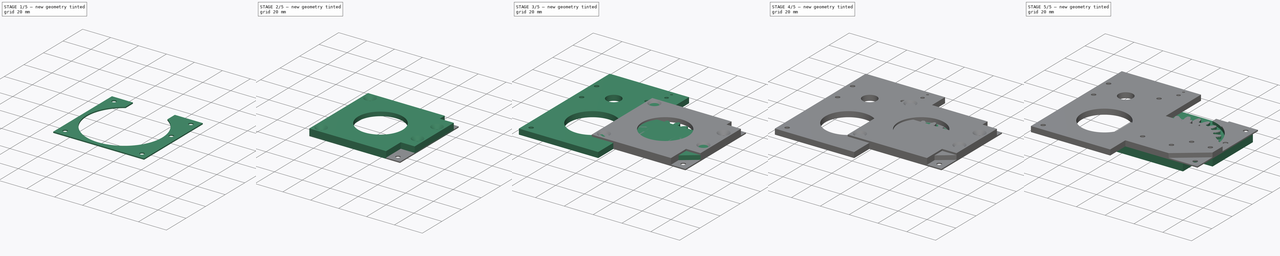
[diagram: build sequence overview — one tinted view per stage of 5, left to right]
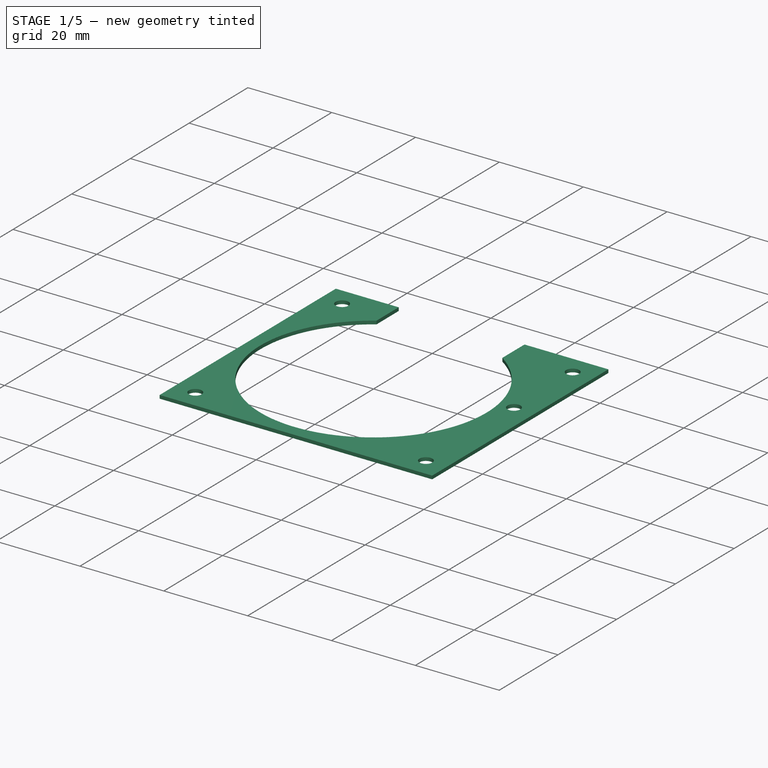
[diagram: stage 1 of 5 — iso view after this stage's code; geometry added in this stage tinted green]
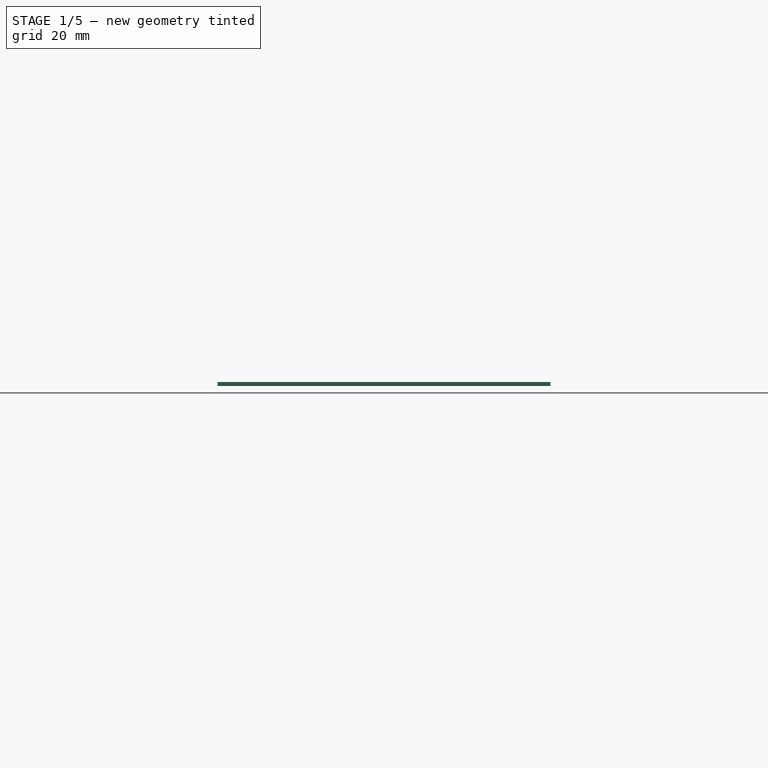
[diagram: stage 1 of 5 — front view after this stage's code; geometry added in this stage tinted green]
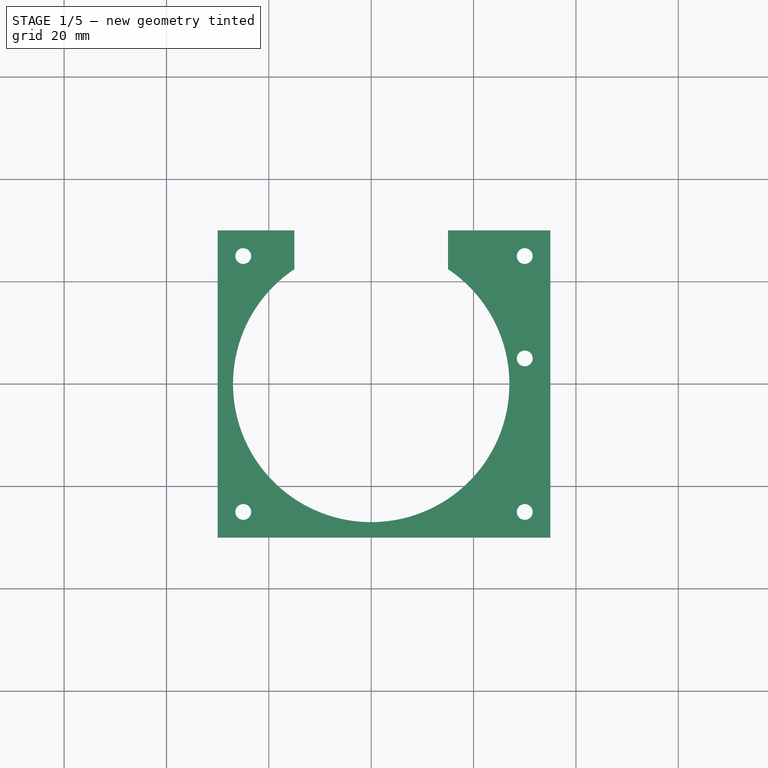
[diagram: stage 1 of 5 — top view after this stage's code; geometry added in this stage tinted green]
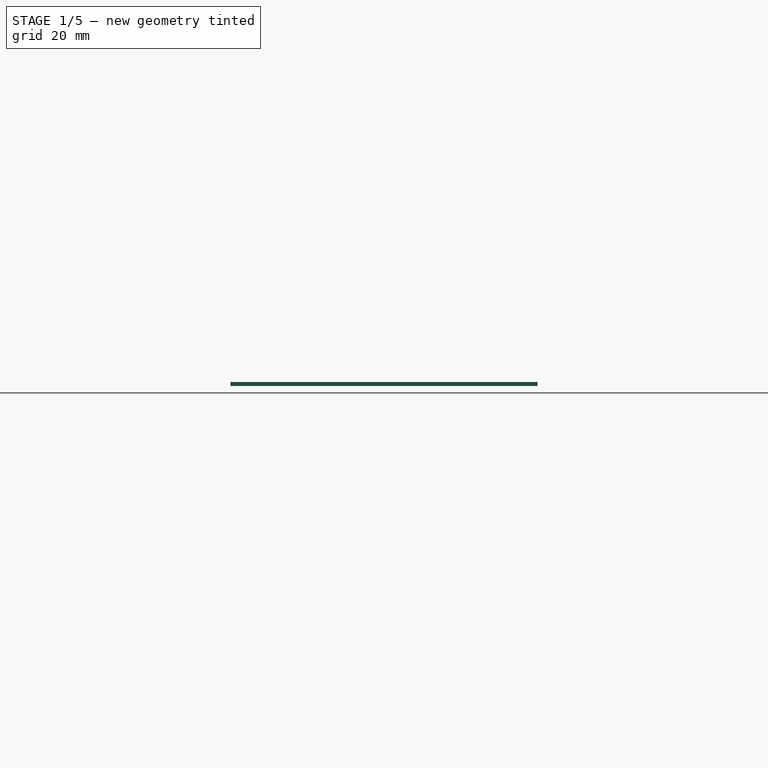
[diagram: stage 1 of 5 — right view after this stage's code; geometry added in this stage tinted green]
FCSTD DOCUMENT  (FreeCAD 0.17R13541 (Git))
Label: rotation
License: All rights reserved
LicenseURL: http://en.wikipedia.org/wiki/All_rights_reserved
objects: Sketcher::SketchObject×13, PartDesign::Pad×7, PartDesign::Body×7, PartDesign::Pocket×5, Part::Part2DObjectPython×2, PartDesign::Revolution×2, Part::Mirroring×2, Part::Feature×1, PartDesign::Hole×1
note: 55 computed .brp shape members not serialized (recipe doc carries the construction recipe); baked Part::Feature solids carry a one-line shape summary decoded from their .brp

FEATURE [Sketcher::SketchObject] Sketch010
  MapMode = 5
  Support = -> [XY_Plane004]
  sketch-geometry (14):
    g0: ArcOfCircle CenterX=0 CenterY=0 CenterZ=0 NormalX=0 NormalY=0 NormalZ=1 AngleXU=0 Radius=27 StartAngle=0 EndAngle=0.981765
    g1: ArcOfCircle CenterX=0 CenterY=0 CenterZ=0 NormalX=0 NormalY=0 NormalZ=1 AngleXU=0 Radius=27 StartAngle=2.15983 EndAngle=6.28319
    g2: LineSegment StartX=15 StartY=30 StartZ=0 EndX=15 EndY=22.4499 EndZ=0
    g3: LineSegment StartX=35 StartY=30 StartZ=0 EndX=35 EndY=-30 EndZ=0
    g4: LineSegment StartX=35 StartY=-30 StartZ=0 EndX=-30 EndY=-30 EndZ=0
    g5: LineSegment StartX=-30 StartY=-30 StartZ=0 EndX=-30 EndY=30 EndZ=0
    g6: LineSegment StartX=-30 StartY=30 StartZ=0 EndX=-15 EndY=30 EndZ=0
    g7: LineSegment StartX=-15 StartY=30 StartZ=0 EndX=-15 EndY=22.4499 EndZ=0
    g8: LineSegment StartX=15 StartY=30 StartZ=0 EndX=35 EndY=30 EndZ=0
    g9: Circle CenterX=30 CenterY=25 CenterZ=0 NormalX=0 NormalY=0 NormalZ=-1 AngleXU=3.14159 Radius=1.55
    g10: Circle CenterX=30 CenterY=5 CenterZ=0 NormalX=0 NormalY=0 NormalZ=-1 AngleXU=3.14159 Radius=1.55
    g11: Circle CenterX=30 CenterY=-25 CenterZ=0 NormalX=0 NormalY=0 NormalZ=-1 AngleXU=3.14159 Radius=1.55
    g12: Circle CenterX=-25 CenterY=-25 CenterZ=0 NormalX=0 NormalY=0 NormalZ=-1 AngleXU=3.14159 Radius=1.55
    g13: Circle CenterX=-25 CenterY=25 CenterZ=0 NormalX=0 NormalY=0 NormalZ=-1 AngleXU=3.14159 Radius=1.55
FEATURE [PartDesign::Pad] Pad004
  Length = 0.2
  Length2 = 100
  Profile = -> Sketch010
  Type = 0
FEATURE [PartDesign::Body] Body004  label="Body02"
  Group = -> [Sketch010,Pad004]
  Origin = -> Origin004
  Tip = -> Pad004
FEATURE [Sketcher::SketchObject] Sketch011
  MapMode = 5
  Support = -> [XY_Plane005]
  sketch-geometry (14):
    g0: ArcOfCircle CenterX=0 CenterY=0 CenterZ=0 NormalX=0 NormalY=0 NormalZ=1 AngleXU=0 Radius=27 StartAngle=0 EndAngle=0.981765
    g1: ArcOfCircle CenterX=0 CenterY=0 CenterZ=0 NormalX=0 NormalY=0 NormalZ=1 AngleXU=0 Radius=27 StartAngle=2.15983 EndAngle=6.28319
    g2: LineSegment StartX=15 StartY=30 StartZ=0 EndX=15 EndY=22.4499 EndZ=0
    g3: LineSegment StartX=35 StartY=30 StartZ=0 EndX=35 EndY=-30 EndZ=0
    g4: LineSegment StartX=35 StartY=-30 StartZ=0 EndX=-30 EndY=-30 EndZ=0
    g5: LineSegment StartX=-30 StartY=-30 StartZ=0 EndX=-30 EndY=30 EndZ=0
    g6: LineSegment StartX=-30 StartY=30 StartZ=0 EndX=-15 EndY=30 EndZ=0
    g7: LineSegment StartX=-15 StartY=30 StartZ=0 EndX=-15 EndY=22.4499 EndZ=0
    g8: LineSegment StartX=15 StartY=30 StartZ=0 EndX=35 EndY=30 EndZ=0
    g9: Circle CenterX=30 CenterY=25 CenterZ=0 NormalX=0 NormalY=0 NormalZ=-1 AngleXU=-3.14159 Radius=1.55
    g10: Circle CenterX=30 CenterY=5 CenterZ=0 NormalX=0 NormalY=0 NormalZ=-1 AngleXU=-3.14159 Radius=1.55
    g11: Circle CenterX=30 CenterY=-25 CenterZ=0 NormalX=0 NormalY=0 NormalZ=-1 AngleXU=-3.14159 Radius=1.55
    g12: Circle CenterX=-25 CenterY=-25 CenterZ=0 NormalX=0 NormalY=0 NormalZ=-1 AngleXU=-3.14159 Radius=1.55
    g13: Circle CenterX=-25 CenterY=25 CenterZ=0 NormalX=0 NormalY=0 NormalZ=-1 AngleXU=-3.14159 Radius=1.55
FEATURE [PartDesign::Pad] Pad005
  Length = 0.4
  Length2 = 100
  Profile = -> Sketch011
  Type = 0
FEATURE [PartDesign::Body] Body005  label="Body04"
  Group = -> [Sketch011,Pad005]
  Origin = -> Origin005
  Tip = -> Pad005
FEATURE [Sketcher::SketchObject] Sketch012
  MapMode = 5
  Support = -> [XY_Plane006]
  sketch-geometry (14):
    g0: ArcOfCircle CenterX=0 CenterY=0 CenterZ=0 NormalX=0 NormalY=0 NormalZ=1 AngleXU=0 Radius=27 StartAngle=0 EndAngle=0.981765
    g1: ArcOfCircle CenterX=0 CenterY=0 CenterZ=0 NormalX=0 NormalY=0 NormalZ=1 AngleXU=0 Radius=27 StartAngle=2.15983 EndAngle=6.28319
    g2: LineSegment StartX=15 StartY=30 StartZ=0 EndX=15 EndY=22.4499 EndZ=0
    g3: LineSegment StartX=35 StartY=30 StartZ=0 EndX=35 EndY=-30 EndZ=0
    g4: LineSegment StartX=35 StartY=-30 StartZ=0 EndX=-30 EndY=-30 EndZ=0
    g5: LineSegment StartX=-30 StartY=-30 StartZ=0 EndX=-30 EndY=30 EndZ=0
    g6: LineSegment StartX=-30 StartY=30 StartZ=0 EndX=-15 EndY=30 EndZ=0
    g7: LineSegment StartX=-15 StartY=30 StartZ=0 EndX=-15 EndY=22.4499 EndZ=0
    g8: LineSegment StartX=15 StartY=30 StartZ=0 EndX=35 EndY=30 EndZ=0
    g9: Circle CenterX=30 CenterY=25 CenterZ=0 NormalX=0 NormalY=0 NormalZ=-1 AngleXU=3.14159 Radius=1.55
    g10: Circle CenterX=30 CenterY=5 CenterZ=0 NormalX=0 NormalY=0 NormalZ=-1 AngleXU=3.14159 Radius=1.55
    g11: Circle CenterX=30 CenterY=-25 CenterZ=0 NormalX=0 NormalY=0 NormalZ=-1 AngleXU=3.14159 Radius=1.55
    g12: Circle CenterX=-25 CenterY=-25 CenterZ=0 NormalX=0 NormalY=0 NormalZ=-1 AngleXU=3.14159 Radius=1.55
    g13: Circle CenterX=-25 CenterY=25 CenterZ=0 NormalX=0 NormalY=0 NormalZ=-1 AngleXU=3.14159 Radius=1.55
FEATURE [PartDesign::Pad] Pad006
  Length = 0.8
  Length2 = 100
  Profile = -> Sketch012
  Type = 0
FEATURE [PartDesign::Body] Body006  label="Body08"
  Group = -> [Sketch012,Pad006]
  Origin = -> Origin006
  Tip = -> Pad006
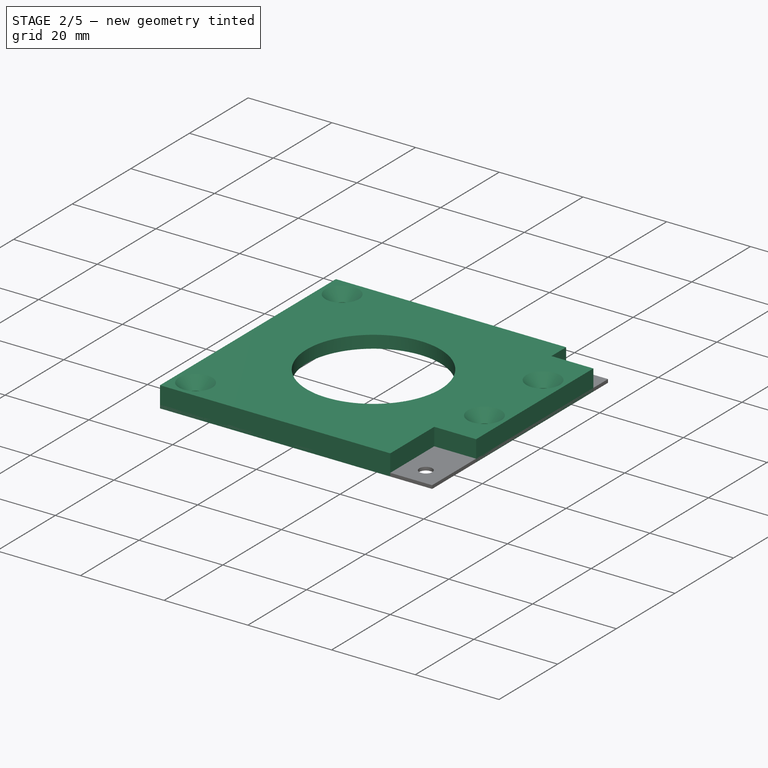
[diagram: stage 2 of 5 — iso view after this stage's code; geometry added in this stage tinted green]
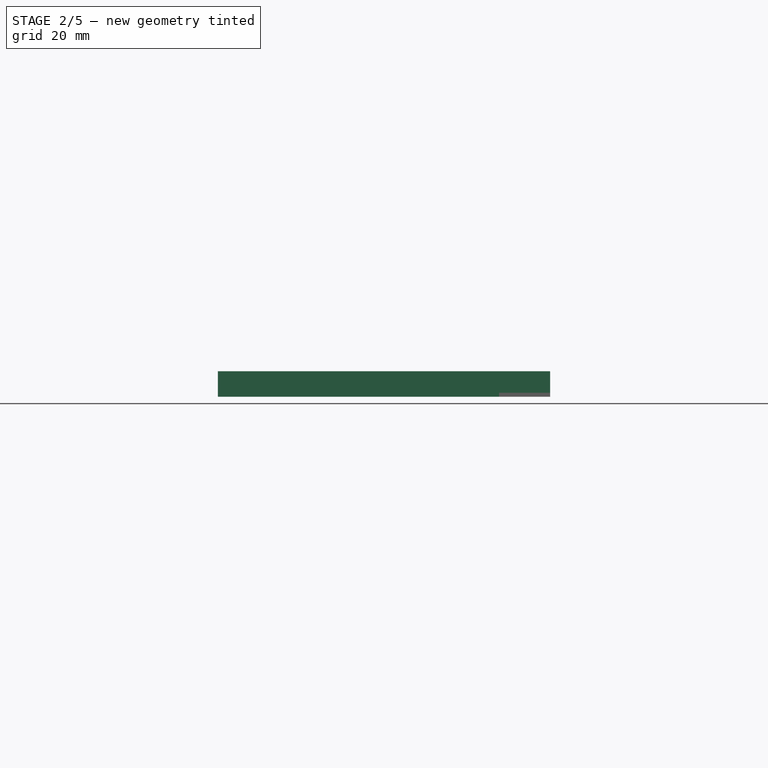
[diagram: stage 2 of 5 — front view after this stage's code; geometry added in this stage tinted green]
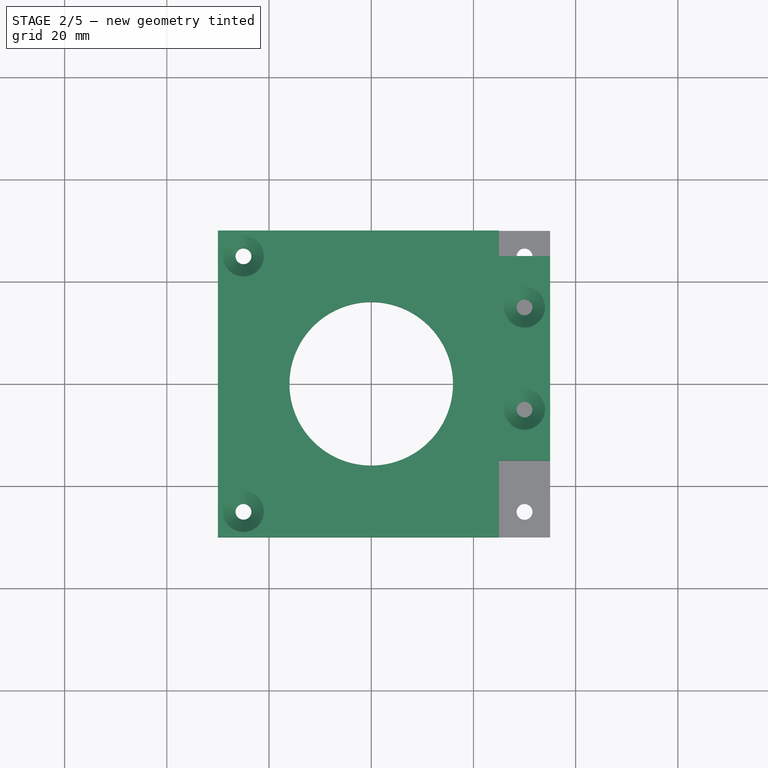
[diagram: stage 2 of 5 — top view after this stage's code; geometry added in this stage tinted green]
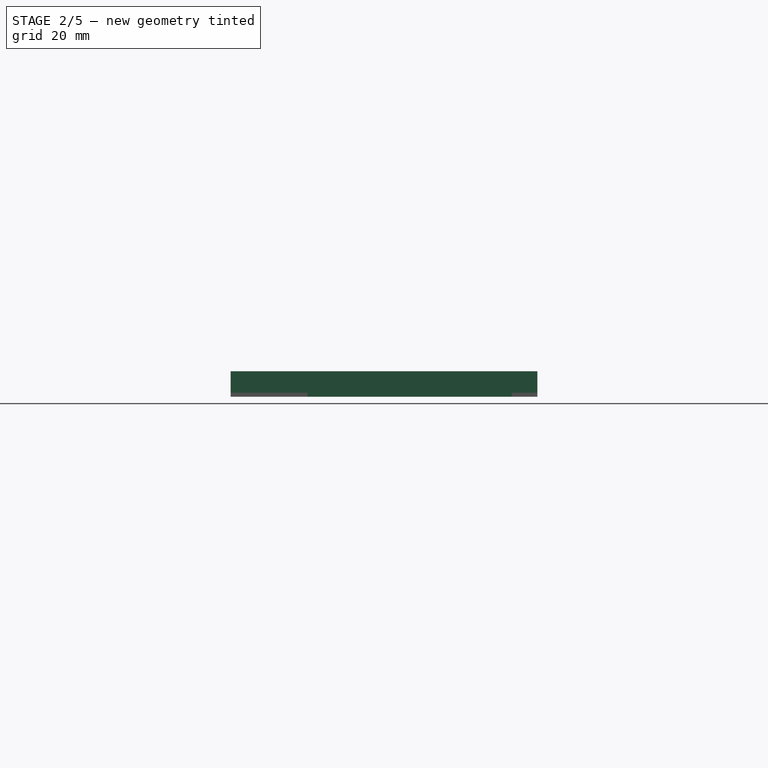
[diagram: stage 2 of 5 — right view after this stage's code; geometry added in this stage tinted green]
FEATURE [PartDesign::Body] Body  label="bearing-middle"
  Group = -> [Sketch,Sketch001,InvoluteGear,Pad,Pocket001,Sketch002,Revolution,Pocket]
  Origin = -> Origin
  Tip = -> Pocket
FEATURE [Sketcher::SketchObject] Sketch003
  MapMode = 5
  Placement = pos=(0,0,0) rot=(1,0,0;1.5708rad)
  Support = -> [XZ_Plane001]
  sketch-geometry (10):
    g0: LineSegment StartX=27 StartY=2 StartZ=0 EndX=27 EndY=0 EndZ=0
    g1: LineSegment StartX=27 StartY=0 StartZ=0 EndX=50 EndY=0 EndZ=0
    g2: LineSegment StartX=50 StartY=0 StartZ=0 EndX=50 EndY=5 EndZ=0
    g3: LineSegment StartX=50 StartY=5 StartZ=0 EndX=16 EndY=5 EndZ=0
    g4: LineSegment StartX=16 StartY=5 StartZ=0 EndX=16 EndY=2 EndZ=0
    g5: ArcOfCircle CenterX=18 CenterY=1.8 CenterZ=0 NormalX=0 NormalY=0 NormalZ=1 AngleXU=0 Radius=1.1 StartAngle=0.182835 EndAngle=2.95876
    g6: GeomPoint X=20 Y=2 Z=0
    g7: LineSegment StartX=19.0817 StartY=2 StartZ=0 EndX=20 EndY=2 EndZ=0
    g8: LineSegment StartX=20 StartY=2 StartZ=0 EndX=27 EndY=2 EndZ=0
    g9: LineSegment StartX=16 StartY=2 StartZ=0 EndX=16.9183 EndY=2 EndZ=0
  constraints (29):
    c: Vertical(g0)
    c: Coincident(g0,g1)
    c: PointOnObject(g1,g-1)
    c: Horizontal(g1)
    c: Coincident(g1,g2)
    c: Vertical(g2)
    c: Coincident(g2,g3)
    c: Horizontal(g3)
    c: Coincident(g3,g4)
    c: DistanceY(g-1,g4) = 2
    c: Radius(g5) = 1.1
    c: DistanceY(g5,g5) = 0.2
    c: DistanceY(g0,g0) = 2
    c: Coincident(g7,g5)
    c: Coincident(g7,g6)
    c: Horizontal(g7)
    c: Coincident(g8,g6)
    c: Coincident(g8,g0)
    c: Horizontal(g8)
    c: DistanceY(g2,g2) = 5
    c: DistanceX(g-1,g6) = 20
    c: DistanceX(g-1,g1) = 50
    c: DistanceX(g-1,g0) = 27
    c: DistanceX(g-1,g3) = 16
    c: Vertical(g4)
    c: Coincident(g9,g4)
    c: Coincident(g9,g5)
    c: Horizontal(g9)
    c: Equal(g9,g7)
FEATURE [PartDesign::Revolution] Revolution001
  Angle = 360
  Axis = (0,0,1)
  Base = (0,0,0)
  Placement = pos=(0,0,0) rot=(1,0,0;1.5708rad)
  Profile = -> Sketch003
  ReferenceAxis = -> Sketch003 [V_Axis]
  Reversed = true
FEATURE [PartDesign::Body] Body003  label="plywood001"
  Group = -> [Sketch006,Pad003]
  Origin = -> Origin003
  Placement = pos=(40,15,-8.8) rot=(0,0,1;0rad)
  Tip = -> Pad003
FEATURE [Sketcher::SketchObject] Sketch007
  MapMode = 5
  Placement = pos=(0,0,5) rot=(0,0,1;3.14159rad)
  Support = -> [Revolution001]
  sketch-geometry (13):
    g0: LineSegment StartX=30 StartY=30 StartZ=0 EndX=30 EndY=-30 EndZ=0
    g1: LineSegment StartX=-108.453 StartY=82.4132 StartZ=0 EndX=121.2 EndY=82.4132 EndZ=0
    g2: LineSegment StartX=121.2 StartY=82.4132 StartZ=0 EndX=121.2 EndY=-113.909 EndZ=0
    g3: LineSegment StartX=121.2 StartY=-113.909 StartZ=0 EndX=-108.453 EndY=-113.909 EndZ=0
    g4: LineSegment StartX=-108.453 StartY=-113.909 StartZ=0 EndX=-108.453 EndY=82.4132 EndZ=0
    g5: LineSegment StartX=-25 StartY=30 StartZ=0 EndX=-25 EndY=15 EndZ=0
    g6: LineSegment StartX=-25 StartY=15 StartZ=0 EndX=-35 EndY=15 EndZ=0
    g7: LineSegment StartX=-25 StartY=-30 StartZ=0 EndX=-25 EndY=-25 EndZ=0
    g8: LineSegment StartX=-25 StartY=-25 StartZ=0 EndX=-35 EndY=-25 EndZ=0
    g9: LineSegment StartX=30 StartY=-30 StartZ=0 EndX=-25 EndY=-30 EndZ=0
    g10: LineSegment StartX=-35 StartY=-25 StartZ=0 EndX=-35 EndY=15 EndZ=0
    g11: LineSegment StartX=-25 StartY=30 StartZ=0 EndX=30 EndY=30 EndZ=0
    g12: LineSegment [constr] StartX=-25 StartY=-25 StartZ=0 EndX=-25 EndY=15 EndZ=0
  constraints (34):
    c: Vertical(g0)
    c: DistanceX(g-1,g0) = 30
    c: Coincident(g1,g2)
    c: Coincident(g2,g3)
    c: Coincident(g3,g4)
    c: Coincident(g4,g1)
    c: Horizontal(g1)
    c: Horizontal(g3)
    c: Vertical(g2)
    c: Vertical(g4)
    c: Vertical(g5)
    c: Coincident(g6,g5)
    c: Horizontal(g6)
    c: Vertical(g7)
    c: Coincident(g8,g7)
    c: Horizontal(g8)
    c: Coincident(g9,g0)
    c: Coincident(g9,g7)
    c: Horizontal(g9)
    c: Coincident(g10,g8)
    c: Coincident(g10,g6)
    c: Vertical(g10)
    c: Coincident(g11,g5)
    c: Coincident(g11,g0)
    c: Horizontal(g11)
    c: DistanceY(g0,g0) = 60
    c: DistanceX(g9,g9) = 55
    c: Coincident(g12,g7)
    c: Coincident(g12,g5)
    c: Vertical(g12)
    c: DistanceX(g8,g7) = 10
    c: DistanceY(g10,g10) = 40
    c: DistanceY(g7,g7) = 5
    c: DistanceY(g-1,g5) = 30
FEATURE [PartDesign::Pocket] Pocket003
  BaseFeature = -> Revolution001
  Length = 10
  Length2 = 100
  Placement = pos=(0,0,0) rot=(1,0,0;1.5708rad)
  Profile = -> Sketch007
  Type = 0
FEATURE [Sketcher::SketchObject] Sketch008
  MapMode = 5
  Placement = pos=(0,0,5) rot=(0,0,1;3.14159rad)
  Support = -> [Pocket003]
  sketch-geometry (5):
    g0: Circle CenterX=25 CenterY=25 CenterZ=0 NormalX=0 NormalY=0 NormalZ=1 AngleXU=0 Radius=1.55
    g1: Circle CenterX=25 CenterY=-25 CenterZ=0 NormalX=0 NormalY=0 NormalZ=1 AngleXU=0 Radius=1.55
    g2: Circle CenterX=-30 CenterY=-15 CenterZ=0 NormalX=0 NormalY=0 NormalZ=1 AngleXU=0 Radius=1.55
    g3: Circle CenterX=-30 CenterY=5 CenterZ=0 NormalX=0 NormalY=0 NormalZ=1 AngleXU=0 Radius=1.55
    g4: LineSegment [constr] StartX=-30 StartY=5 StartZ=0 EndX=-30 EndY=-15 EndZ=0
  constraints (14):
    c: Radius(g0) = 1.55
    c: Radius(g3) = 1.55
    c: Radius(g2) = 1.55
    c: Radius(g1) = 1.55
    c: DistanceX(g-1,g0) = 25
    c: DistanceX(g-1,g1) = 25
    c: DistanceY(g-1,g0) = 25
    c: DistanceY(g3,g-1) = -5
    c: DistanceY(g1,g-1) = 25
    c: DistanceY(g2,g3) = 20
    c: Coincident(g4,g3)
    c: Coincident(g4,g2)
    c: Vertical(g4)
    c: DistanceX(g3,g-1) = 30
FEATURE [PartDesign::Hole] Hole
  BaseFeature = -> Pocket003
  Depth = 25
  DepthType = 0
  Diameter = 3.1
  DrillPoint = 0
  DrillPointAngle = 118
  HoleCutCountersinkAngle = 90
  HoleCutDepth = 0
  HoleCutDiameter = 8
  HoleCutType = 2
  ModelActualThread = false
  Placement = pos=(0,0,0) rot=(1,0,0;1.5708rad)
  Profile = -> Sketch008
  Tapered = false
  TaperedAngle = 90
  ThreadAngle = 0
  ThreadClass = 0
  ThreadCutOffInner = 0
  ThreadCutOffOuter = 0
  ThreadDirection = 0
  ThreadFit = 0
  ThreadPitch = 0
  ThreadSize = 0
  ThreadType = 0
  Threaded = false
FEATURE [Sketcher::SketchObject] Sketch009
  MapMode = 5
  Placement = pos=(0,30,0) rot=(-1,0,0;1.5708rad)
  Support = -> [Hole]
  sketch-geometry (4):
    g0: LineSegment StartX=-24 StartY=0 StartZ=0 EndX=6 EndY=0 EndZ=0
    g1: LineSegment StartX=6 StartY=0 StartZ=0 EndX=6 EndY=-2 EndZ=0
    g2: LineSegment StartX=6 StartY=-2 StartZ=0 EndX=-24 EndY=-2 EndZ=0
    g3: LineSegment StartX=-24 StartY=-2 StartZ=0 EndX=-24 EndY=0 EndZ=0
  constraints (12):
    c: Coincident(g0,g1)
    c: Coincident(g1,g2)
    c: Coincident(g2,g3)
    c: Coincident(g3,g0)
    c: Horizontal(g0)
    c: Horizontal(g2)
    c: Vertical(g1)
    c: Vertical(g3)
    c: PointOnObject(g0,g-1)
    c: DistanceY(g2,g0) = 2
    c: DistanceX(g2,g1) = 30
    c: DistanceX(g-1,g0) = 6
FEATURE [PartDesign::Pocket] Pocket004
  BaseFeature = -> Hole
  Length = 30
  Length2 = 100
  Placement = pos=(0,0,0) rot=(1,0,0;1.5708rad)
  Profile = -> Sketch009
  Type = 0
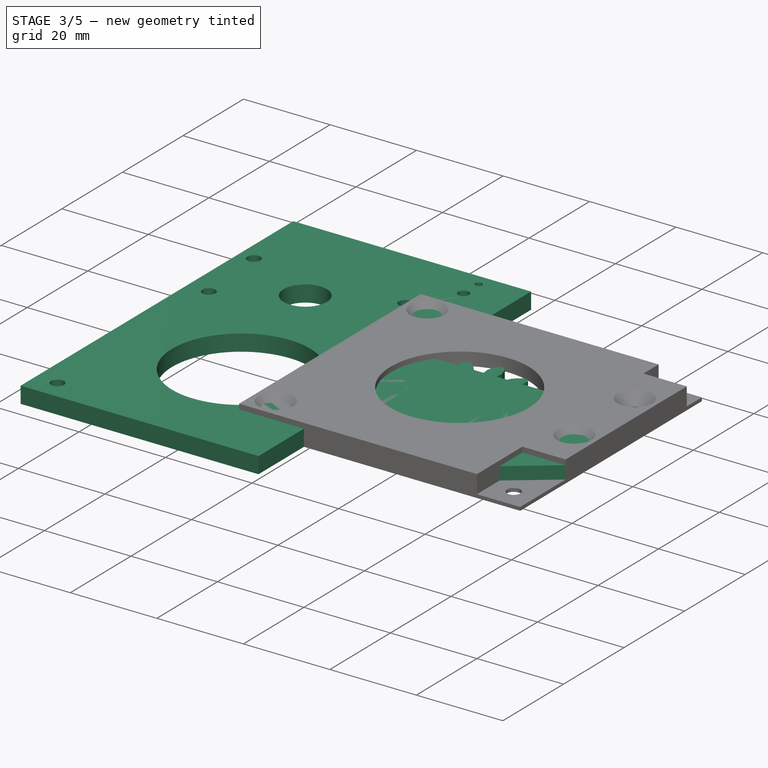
[diagram: stage 3 of 5 — iso view after this stage's code; geometry added in this stage tinted green]
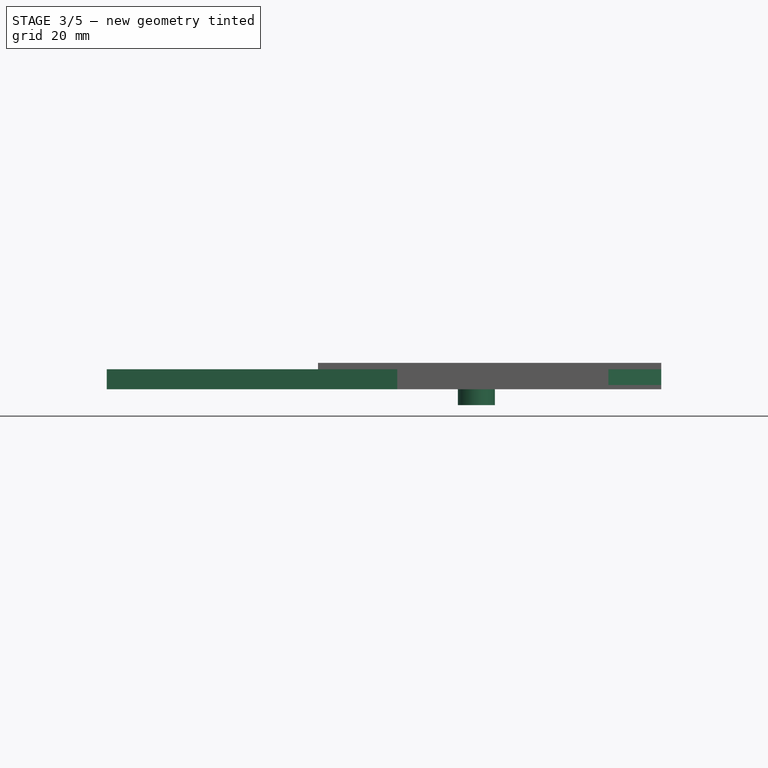
[diagram: stage 3 of 5 — front view after this stage's code; geometry added in this stage tinted green]
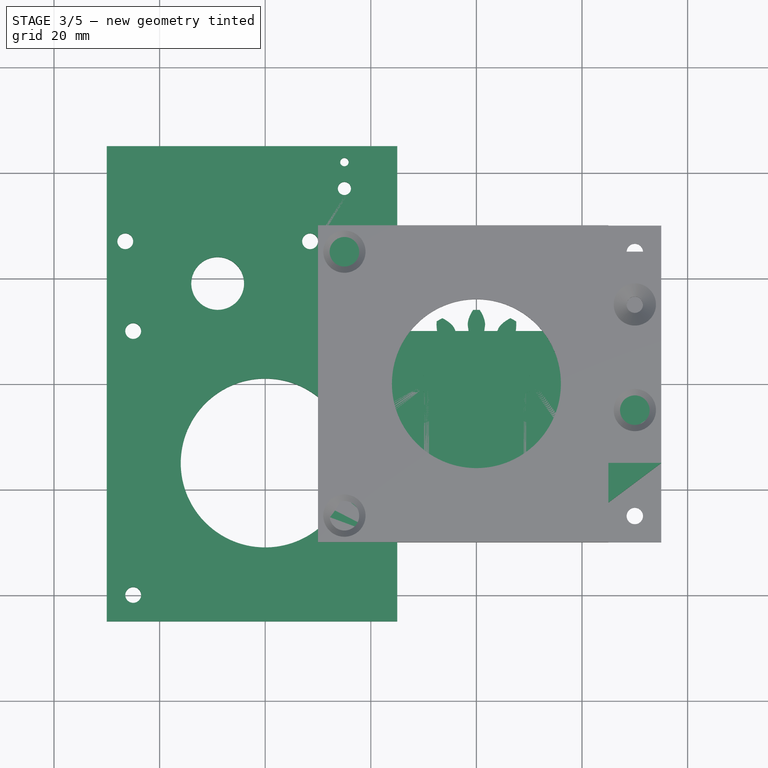
[diagram: stage 3 of 5 — top view after this stage's code; geometry added in this stage tinted green]
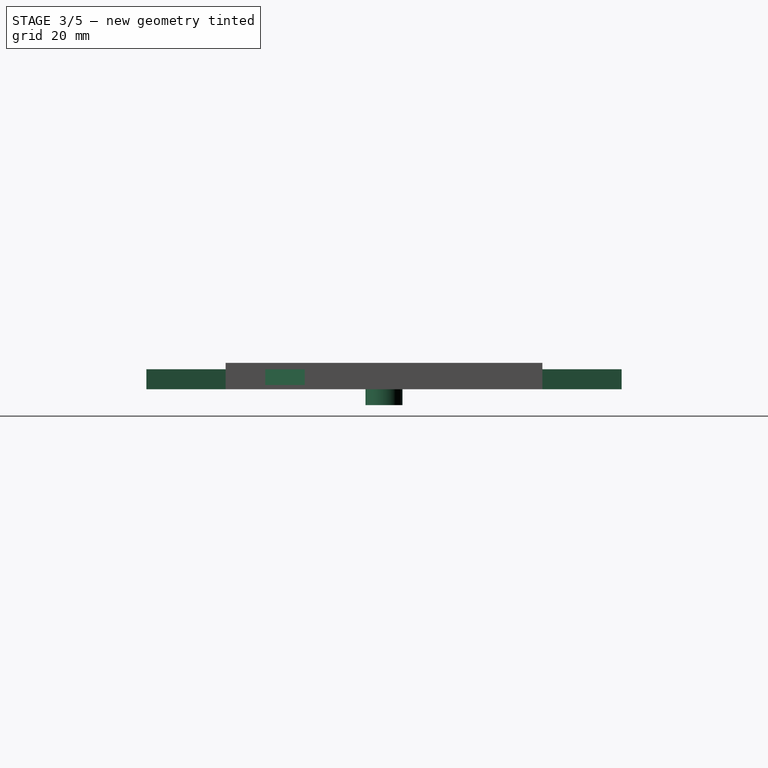
[diagram: stage 3 of 5 — right view after this stage's code; geometry added in this stage tinted green]
FEATURE [Part::Feature] Part__Feature  label="28BYJ-48-stepper"
  Placement = pos=(-9,34,-9) rot=(0,0,1;0rad)
  shape: bbox 42 x 35.15 x 29 mm, 169 faces (baked)
FEATURE [Part::Part2DObjectPython] InvoluteGear001  # Draft 2D object (typed FeaturePython)
  ExternalGear = true
  HighPrecision = true
  Modules = 2
  NumberOfTeeth = 12
  PressureAngle = 20
FEATURE [PartDesign::Pad] Pad001
  Length = 3.8
  Length2 = 100
  Profile = -> InvoluteGear001
  Type = 0
FEATURE [Sketcher::SketchObject] Sketch004
  MapMode = 5
  Placement = pos=(0,0,0) rot=(1,0,0;3.14159rad)
  Support = -> [Pad001]
  sketch-geometry (1):
    g0: Circle CenterX=0 CenterY=0 CenterZ=0 NormalX=0 NormalY=0 NormalZ=1 AngleXU=0 Radius=3.5
  constraints (2):
    c: Coincident(g0,g-1)
    c: Radius(g0) = 3.5
FEATURE [PartDesign::Pad] Pad002
  BaseFeature = -> Pad001
  Length = 3
  Length2 = 100
  Profile = -> Sketch004
  Type = 0
FEATURE [PartDesign::Body] Body002  label="drive-gear"
  Group = -> [InvoluteGear001,Pad001,Sketch004,Pad002,Sketch005,Pocket002]
  Origin = -> Origin002
  Placement = pos=(-9,34,-1.9) rot=(0,0,1;0rad)
  Tip = -> Pocket002
FEATURE [Sketcher::SketchObject] Sketch006
  MapMode = 5
  Support = -> [XY_Plane003]
  sketch-geometry (30):
    g0: Circle CenterX=10 CenterY=0 CenterZ=0 NormalX=0 NormalY=0 NormalZ=1 AngleXU=0 Radius=1.5
    g1: Circle CenterX=-10 CenterY=0 CenterZ=0 NormalX=0 NormalY=0 NormalZ=1 AngleXU=0 Radius=1.5
    g2: Circle CenterX=-10 CenterY=-20 CenterZ=0 NormalX=0 NormalY=0 NormalZ=1 AngleXU=0 Radius=1.5
    g3: Circle CenterX=10 CenterY=-20 CenterZ=0 NormalX=0 NormalY=0 NormalZ=1 AngleXU=0 Radius=1.5
    g4: LineSegment StartX=-70 StartY=45 StartZ=0 EndX=-15 EndY=45 EndZ=0
    g5: LineSegment StartX=35 StartY=-5 StartZ=0 EndX=35 EndY=-15 EndZ=0
    g6: LineSegment StartX=-15 StartY=-45 StartZ=0 EndX=-70 EndY=-45 EndZ=0
    g7: LineSegment StartX=-70 StartY=-45 StartZ=0 EndX=-70 EndY=45 EndZ=0
    g8: Circle CenterX=-40 CenterY=-15 CenterZ=0 NormalX=0 NormalY=0 NormalZ=1 AngleXU=0 Radius=16
    g9: Circle CenterX=-49 CenterY=19 CenterZ=0 NormalX=0 NormalY=0 NormalZ=1 AngleXU=0 Radius=5
    g10: Circle CenterX=-65 CenterY=-40 CenterZ=0 NormalX=0 NormalY=0 NormalZ=1 AngleXU=0 Radius=1.5
    g11: Circle CenterX=-65 CenterY=10 CenterZ=0 NormalX=0 NormalY=0 NormalZ=1 AngleXU=0 Radius=1.5
    g12: Circle CenterX=-31.5 CenterY=27 CenterZ=0 NormalX=0 NormalY=0 NormalZ=1 AngleXU=0 Radius=1.5
    g13: Circle CenterX=-66.5 CenterY=27 CenterZ=0 NormalX=0 NormalY=0 NormalZ=1 AngleXU=0 Radius=1.5
    g14: Circle CenterX=17 CenterY=-10 CenterZ=0 NormalX=0 NormalY=0 NormalZ=1 AngleXU=0 Radius=1.5
    g15: Circle CenterX=30 CenterY=-10 CenterZ=0 NormalX=0 NormalY=0 NormalZ=1 AngleXU=0 Radius=1.5
    g16: LineSegment [constr] StartX=17 StartY=-10 StartZ=0 EndX=30 EndY=-10 EndZ=0
    g17: Circle CenterX=-25 CenterY=42 CenterZ=0 NormalX=0 NormalY=0 NormalZ=1 AngleXU=0 Radius=0.8
    g18: Circle CenterX=-25 CenterY=37 CenterZ=0 NormalX=0 NormalY=0 NormalZ=1 AngleXU=0 Radius=1.25
    g19: GeomPoint X=-15 Y=-30 Z=0
    g20: GeomPoint X=-15 Y=10 Z=0
    g21: LineSegment StartX=-15 StartY=45 StartZ=0 EndX=-15 EndY=10 EndZ=0
    g22: LineSegment StartX=-15 StartY=-30 StartZ=0 EndX=-15 EndY=-45 EndZ=0
    g23: GeomPoint X=15 Y=10 Z=0
    g24: GeomPoint X=15 Y=-30 Z=0
    g25: LineSegment [constr] StartX=15 StartY=10 StartZ=0 EndX=15 EndY=-30 EndZ=0
    g26: LineSegment StartX=-15 StartY=10 StartZ=0 EndX=15 EndY=10 EndZ=0
    g27: LineSegment StartX=-15 StartY=-30 StartZ=0 EndX=15 EndY=-30 EndZ=0
    g28: LineSegment StartX=15 StartY=-30 StartZ=0 EndX=35 EndY=-15 EndZ=0
    g29: LineSegment StartX=15 StartY=10 StartZ=0 EndX=35 EndY=-5 EndZ=0
  constraints (81):
    c: DistanceX(g1,g0) = 20
    c: DistanceX(g2,g3) = 20
    c: DistanceY(g2,g1) = 20
    c: DistanceY(g3,g0) = 20
    c: DistanceX(g2,g-1) = 10
    c: DistanceX(g1,g-1) = 10
    c: DistanceY(g-1,g1) = 0
    c: Radius(g1) = 1.5
    c: Radius(g0) = 1.5
    c: Radius(g2) = 1.5
    c: Radius(g3) = 1.5
    c: Coincident(g6,g7)
    c: Coincident(g7,g4)
    c: Horizontal(g4)
    c: Horizontal(g6)
    c: Vertical(g5)
    c: Vertical(g7)
    c: DistanceY(g7,g7) = 90
    c: DistanceY(g-1,g4) = 45
    c: DistanceX(g6,g-1) = 70
    c: Radius(g8) = 16
    c: DistanceY(g8,g-1) = 15
    c: DistanceX(g8,g-1) = 40
    c: Radius(g9) = 5
    c: Radius(g11) = 1.5
    c: Radius(g10) = 1.5
    c: DistanceX(g10,g-1) = 65
    c: DistanceX(g11,g-1) = 65
    c: DistanceY(g10,g-1) = 40
    c: DistanceY(g-1,g11) = 10
    c: Radius(g12) = 1.5
    c: Radius(g13) = 1.5
    c: DistanceY(g-1,g13) = 27
    c: DistanceX(g12) = -31.5
    c: Radius(g14) = 1.5
    c: Radius(g15) = 1.5
    c: DistanceX(g0,g14) = 7
    c: DistanceX(g14,g15) = 13
    c: DistanceY(g3,g14) = 10
    c: DistanceY(g3,g15) = 10
    c: DistanceY(g5,g5) = 10
    c: DistanceX(g4,g4) = 55
    c: DistanceX(g6,g6) = 55
    c: DistanceY(g0,g1) = 0
    c: Coincident(g16,g14)
    c: Coincident(g16,g15)
    c: Horizontal(g16)
    c: Symmetric(g5,g5,g16)
    c: DistanceX(g15,g5) = 5
    c: Radius(g17) = 0.8
    c: DistanceX(g17,g-1) = 25
    c: DistanceY(g17,g4) = 3
    c: Radius(g18) = 1.25
    c: DistanceX(g18,g17) = 0
    c: DistanceY(g18,g17) = 5
    c: DistanceX(g13,g12) = 35
    c: DistanceX(g9,g12) = 17.5
    c: DistanceY(g13,g12) = 0
    c: DistanceY(g9,g12) = 8
    c: Coincident(g21,g4)
    c: Coincident(g21,g20)
    c: Coincident(g22,g19)
    c: Coincident(g22,g6)
    c: Vertical(g21)
    c: Vertical(g22)
    c: Coincident(g25,g23)
    c: Coincident(g25,g24)
    c: Vertical(g25)
    c: Coincident(g26,g20)
    c: Coincident(g26,g23)
    c: Horizontal(g26)
    c: Coincident(g27,g19)
    c: Horizontal(g27)
    c: Coincident(g28,g27)
    c: Coincident(g28,g5)
    c: Coincident(g29,g23)
    c: Coincident(g29,g5)
    c: Coincident(g27,g24)
    c: DistanceY(g25,g25) = 40
    c: Symmetric(g20,g19,g16)
    c: DistanceX(g26,g26) = 30
FEATURE [PartDesign::Pad] Pad003
  Length = 3.8
  Length2 = 100
  Profile = -> Sketch006
  Type = 0
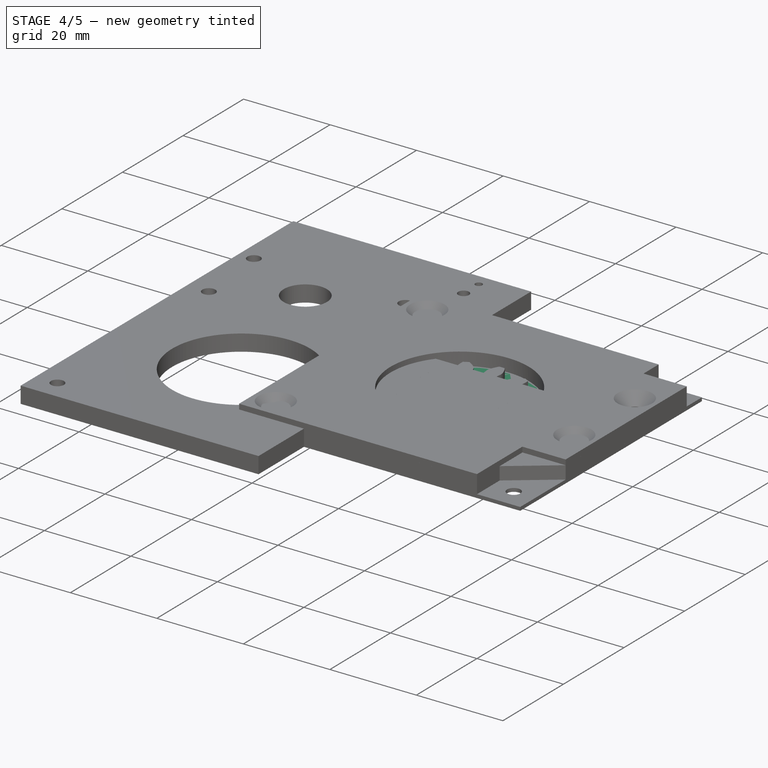
[diagram: stage 4 of 5 — iso view after this stage's code; geometry added in this stage tinted green]
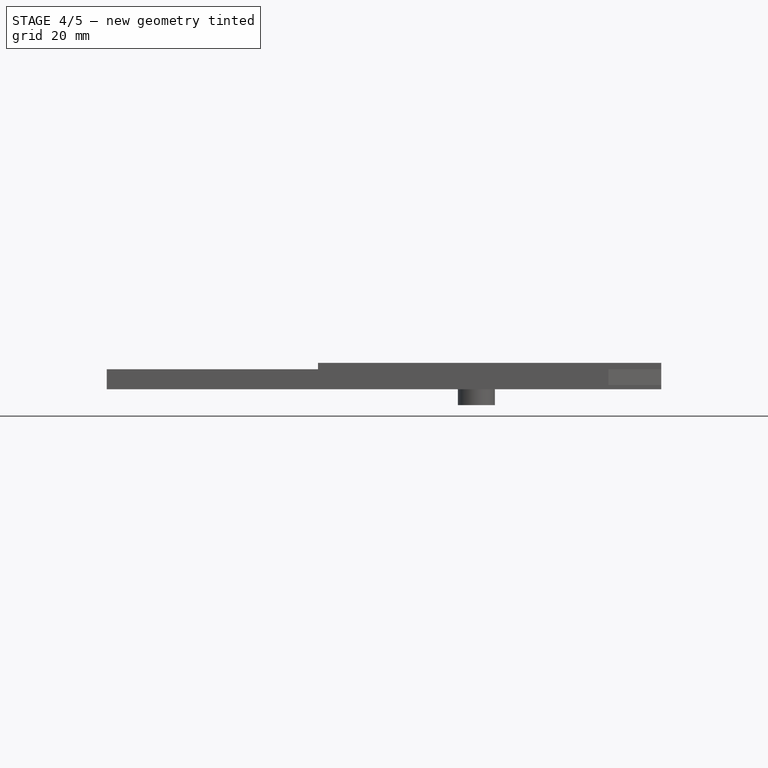
[diagram: stage 4 of 5 — front view after this stage's code; geometry added in this stage tinted green]
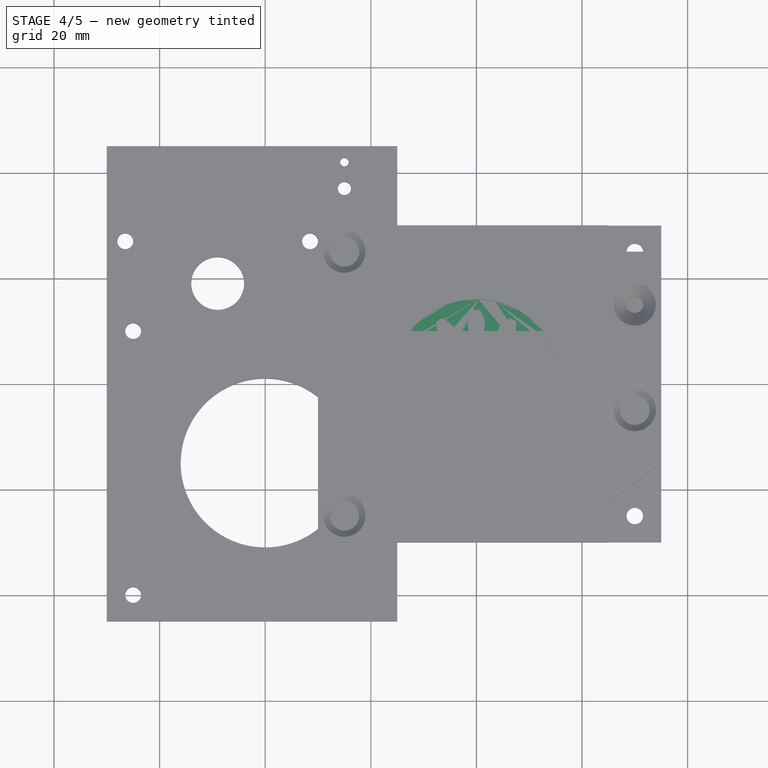
[diagram: stage 4 of 5 — top view after this stage's code; geometry added in this stage tinted green]
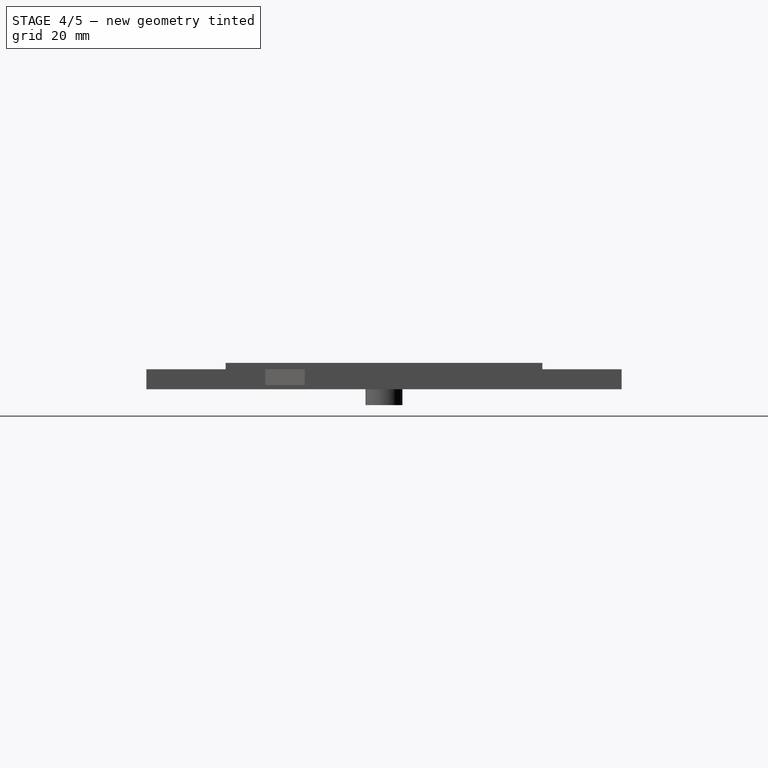
[diagram: stage 4 of 5 — right view after this stage's code; geometry added in this stage tinted green]
FEATURE [Sketcher::SketchObject] Sketch
  MapMode = 5
  Placement = pos=(0,0,0) rot=(1,0,0;1.5708rad)
  Support = -> [XZ_Plane]
  sketch-geometry (8):
    g0: LineSegment StartX=0 StartY=1.8 StartZ=0 EndX=0 EndY=0 EndZ=0
    g1: LineSegment StartX=0 StartY=0 StartZ=0 EndX=-20 EndY=0 EndZ=0
    g2: LineSegment StartX=-20 StartY=0 StartZ=0 EndX=-20 EndY=1.8 EndZ=0
    g3: ArcOfCircle CenterX=-18 CenterY=2 CenterZ=0 NormalX=0 NormalY=0 NormalZ=1 AngleXU=0 Radius=1.1 StartAngle=3.32443 EndAngle=6.10035
    g4: GeomPoint X=-16 Y=1.8 Z=0
    g5: LineSegment StartX=-16.9183 StartY=1.8 StartZ=0 EndX=-16 EndY=1.8 EndZ=0
    g6: LineSegment StartX=-16 StartY=1.8 StartZ=0 EndX=0 EndY=1.8 EndZ=0
    g7: LineSegment StartX=-20 StartY=1.8 StartZ=0 EndX=-19.0817 EndY=1.8 EndZ=0
  constraints (22):
    c: Coincident(g0,g1)
    c: Coincident(g1,g2)
    c: Horizontal(g1)
    c: Vertical(g0)
    c: Vertical(g2)
    c: Coincident(g0,g-1)
    c: DistanceY(g3,g3) = -0.2
    c: DistanceY(g-1,g0) = 1.8
    c: DistanceX(g1,g-1) = 20
    c: DistanceX(g4,g0) = 16
    c: Coincident(g5,g3)
    c: Horizontal(g5)
    c: Coincident(g6,g4)
    c: Horizontal(g6)
    c: Coincident(g7,g2)
    c: Coincident(g7,g3)
    c: Horizontal(g7)
    c: Equal(g7,g5)
    c: Coincident(g5,g4)
    c: Coincident(g6,g0)
    c: Equal(g2,g0)
    c: Radius(g3) = 1.1
FEATURE [Sketcher::SketchObject] Sketch001
  MapMode = 2
  Placement = pos=(0,0,0) rot=(1,0,0;3.14159rad)
  sketch-geometry (2):
    g0: Circle CenterX=-7.75 CenterY=0 CenterZ=0 NormalX=0 NormalY=0 NormalZ=1 AngleXU=0 Radius=3
    g1: Circle CenterX=7.75 CenterY=0 CenterZ=0 NormalX=0 NormalY=0 NormalZ=1 AngleXU=0 Radius=3
  constraints (6):
    c: PointOnObject(g0,g-1)
    c: PointOnObject(g1,g-1)
    c: Symmetric(g0,g1,g-1)
    c: DistanceX(g0,g1) = 15.5
    c: Radius(g0) = 3
    c: Radius(g1) = 3
FEATURE [Part::Part2DObjectPython] InvoluteGear  # Draft 2D object (typed FeaturePython)
  ExternalGear = true
  HighPrecision = true
  Modules = 2
  NumberOfTeeth = 23
  PressureAngle = 20
FEATURE [PartDesign::Pad] Pad
  Length = 1.8
  Length2 = 100
  Profile = -> InvoluteGear
  Type = 0
FEATURE [Sketcher::SketchObject] Sketch002
  MapMode = 5
  Placement = pos=(0,0,0) rot=(1,0,0;3.14159rad)
  Support = -> [Pad]
  sketch-geometry (1):
    g0: Circle CenterX=0 CenterY=0 CenterZ=0 NormalX=0 NormalY=0 NormalZ=1 AngleXU=0 Radius=19.5
  constraints (2):
    c: Coincident(g0,g-1)
    c: Radius(g0) = 19.5
FEATURE [PartDesign::Pocket] Pocket001
  BaseFeature = -> Pad
  Length = 100
  Length2 = 100
  Offset = -50
  Profile = -> Sketch002
  Type = 1
FEATURE [PartDesign::Revolution] Revolution
  Angle = 360
  Axis = (0,0,1)
  Base = (0,0,0)
  BaseFeature = -> Pocket001
  Profile = -> Sketch
  ReferenceAxis = -> Sketch [V_Axis]
FEATURE [Sketcher::SketchObject] Sketch005
  MapMode = 5
  Placement = pos=(0,0,3.8) rot=(0,0,1;0rad)
  Support = -> [Pad002]
  sketch-geometry (4):
    g0: ArcOfCircle CenterX=0 CenterY=0 CenterZ=0 NormalX=0 NormalY=0 NormalZ=1 AngleXU=0 Radius=2.55 StartAngle=2.48825 EndAngle=3.79493
    g1: LineSegment StartX=-2.02485 StartY=1.55 StartZ=0 EndX=2.02485 EndY=1.55 EndZ=0
    g2: LineSegment StartX=-2.02485 StartY=-1.55 StartZ=0 EndX=2.02485 EndY=-1.55 EndZ=0
    g3: ArcOfCircle CenterX=0 CenterY=0 CenterZ=0 NormalX=0 NormalY=0 NormalZ=1 AngleXU=0 Radius=2.55 StartAngle=5.62984 EndAngle=6.93653
  constraints (12):
    c: Coincident(g0,g-1)
    c: Radius(g0) = 2.55
    c: Horizontal(g1)
    c: Horizontal(g2)
    c: Coincident(g0,g1)
    c: Coincident(g3,g1)
    c: Equal(g0,g3)
    c: Coincident(g0,g2)
    c: Coincident(g3,g2)
    c: Coincident(g0,g3)
    c: DistanceY(g2,g1) = 3.1
    c: Equal(g1,g2)
FEATURE [PartDesign::Pocket] Pocket002
  BaseFeature = -> Pad002
  Length = 100
  Length2 = 100
  Profile = -> Sketch005
  Type = 0
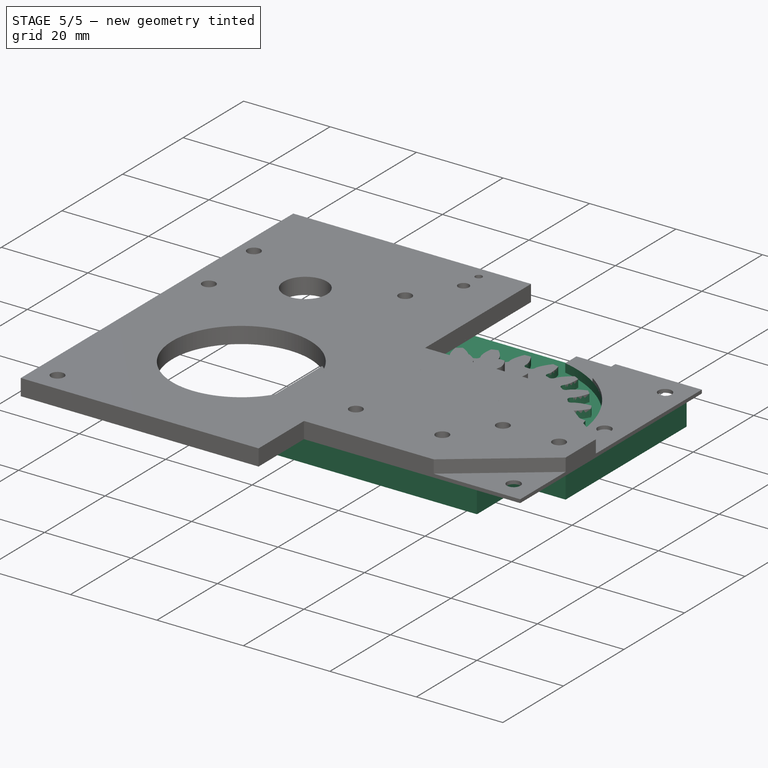
[diagram: stage 5 of 5 — iso view after this stage's code; geometry added in this stage tinted green]
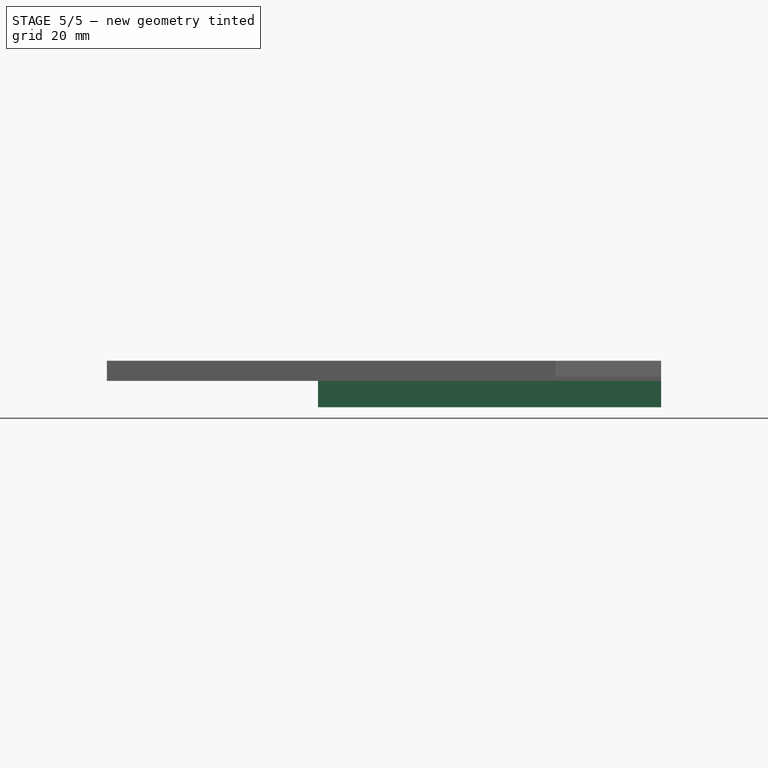
[diagram: stage 5 of 5 — front view after this stage's code; geometry added in this stage tinted green]
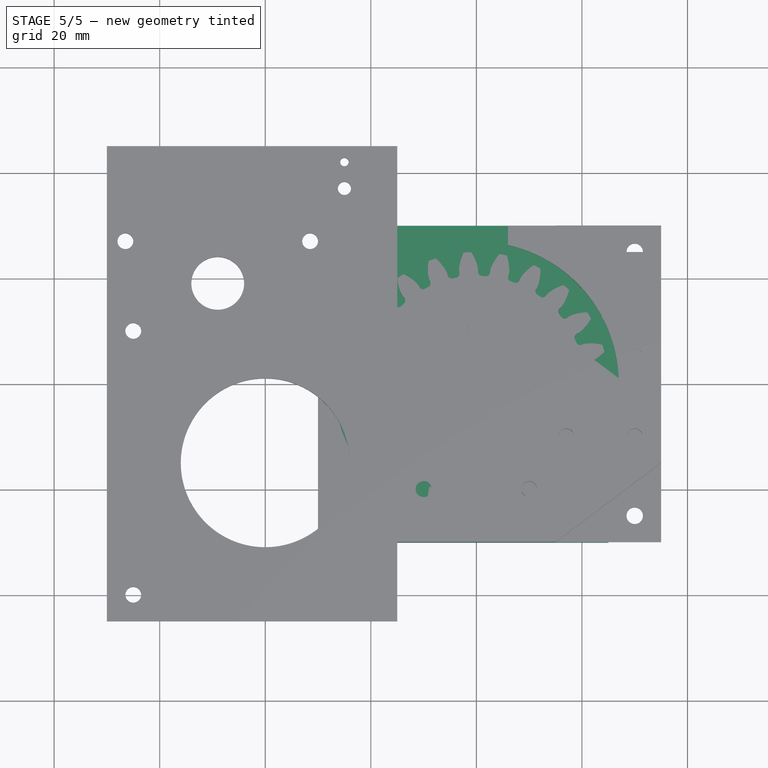
[diagram: stage 5 of 5 — top view after this stage's code; geometry added in this stage tinted green]
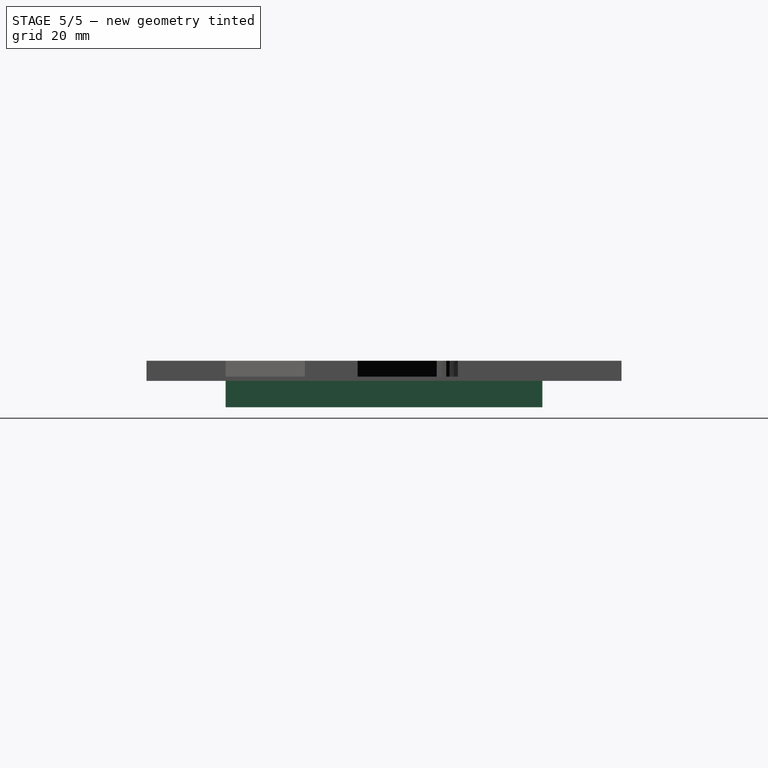
[diagram: stage 5 of 5 — right view after this stage's code; geometry added in this stage tinted green]
FEATURE [PartDesign::Pocket] Pocket
  BaseFeature = -> Revolution
  Length = 5
  Length2 = 100
  Profile = -> Sketch001
  Type = 0
FEATURE [Part::Mirroring] Part__Mirroring001  label="bearing-middle (Mirror #2)"
  Base = (0,0,0)
  Normal = (0,0,1)
  Source = -> Body
FEATURE [PartDesign::Body] Body001  label="bearing-outside"
  Group = -> [Sketch003,Revolution001,Sketch007,Pocket003,Sketch008,Hole,Sketch009,Pocket004]
  Origin = -> Origin001
  Tip = -> Pocket004
FEATURE [Part::Mirroring] Part__Mirroring  label="bearing-outside (Mirror #1)"
  Base = (0,0,0)
  Normal = (0,0,1)
  Source = -> Body001
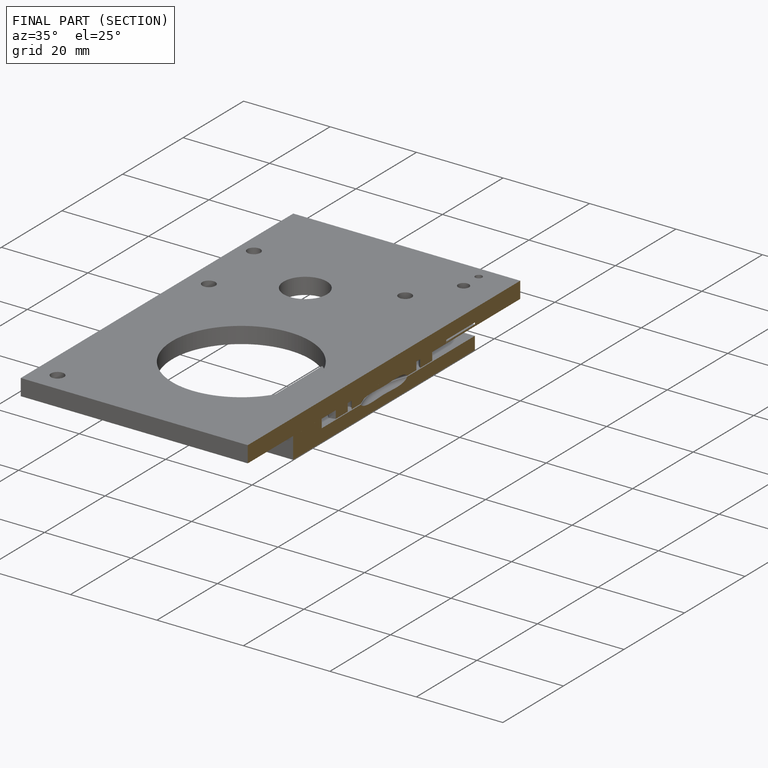
[diagram: finished part — half-section view (interior)]
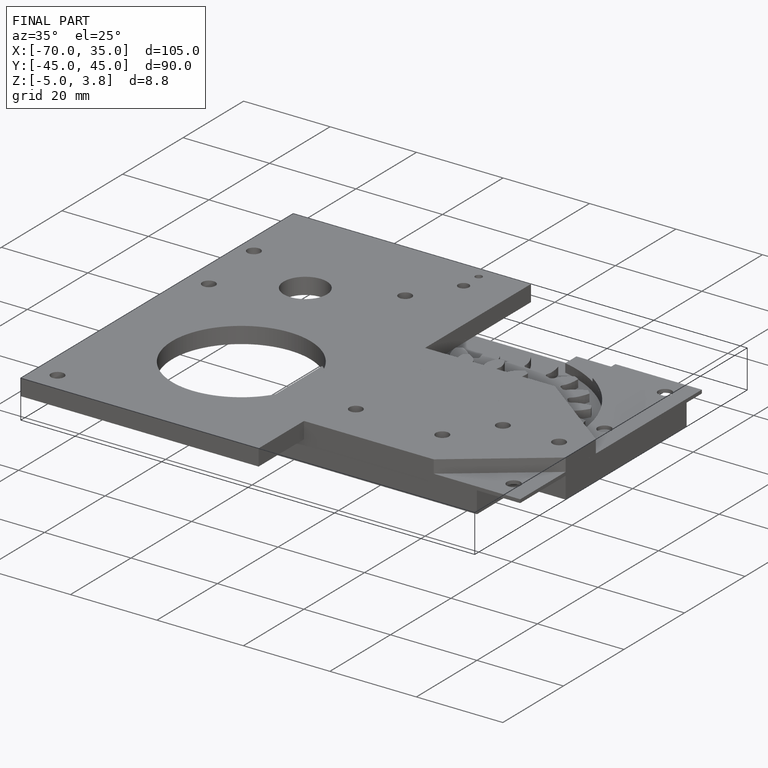
[diagram: finished part — iso view with bounding-box wireframe]
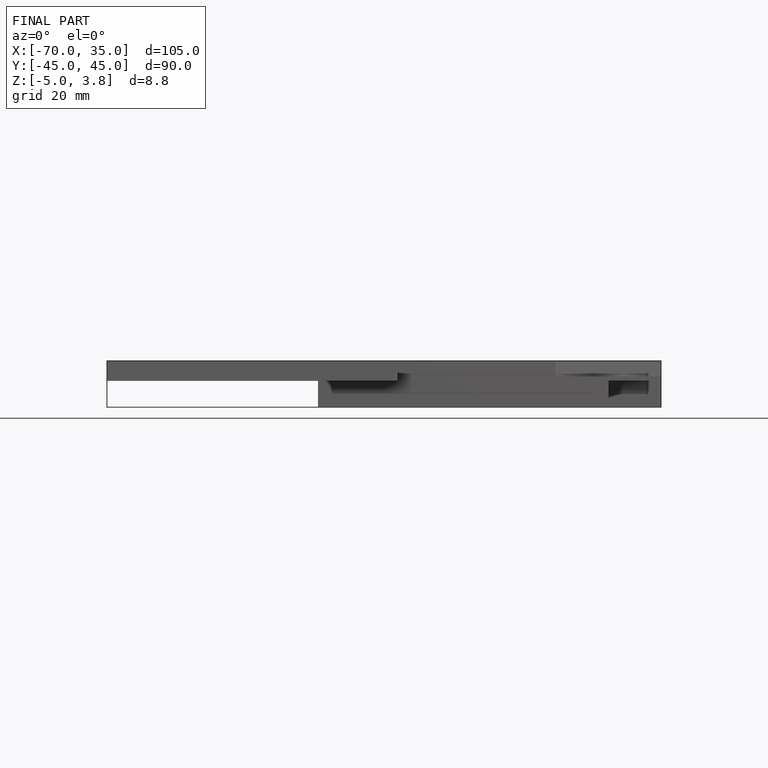
[diagram: finished part — front view with bounding-box wireframe]
